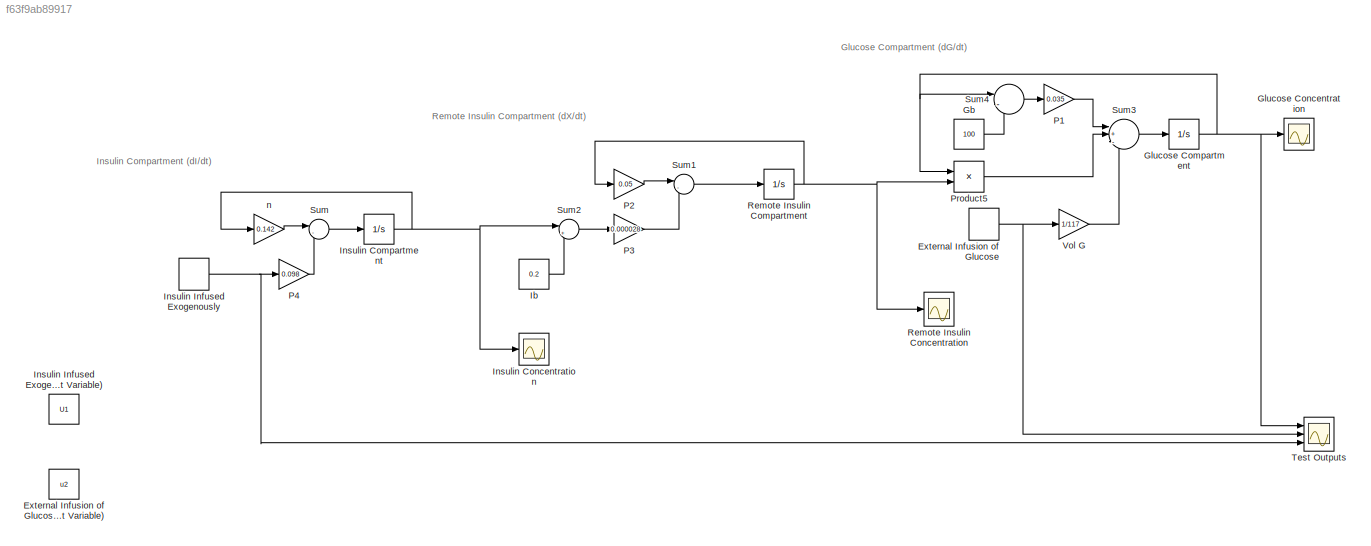
MODEL slx_f63f9ab89917
KIND model
CONFIG AbsTol = auto
CONFIG EnableMultiTasking = off
CONFIG FixedStep = auto
CONFIG MaxStep = auto
CONFIG MinStep = auto
CONFIG RelTol = 1e-3
CONFIG SampleTimeConstraint = Unconstrained
CONFIG Solver = VariableStepAuto
CONFIG SolverName = VariableStepAuto
CONFIG StartTime = 0.0
CONFIG StopTime = 500
WORKSPACE source: MAT-file member
WORKSPACE U1 = 100
BLOCK [DiscretePulseGenerator] External Infusion of Glucose
  Amplitude = 2
  Period = 195
  PhaseDelay = 15
  Ports = [0, 1]
  PulseType = Time based
  PulseWidth = 15
BLOCK [Constant] External Infusion of Glucose (Constant Variable)
  Commented = on
  Value = u2
BLOCK [Constant] Gb
  Value = 100
BLOCK [Integrator] Glucose Compartment
  InitialCondition = 100
  Ports = [1, 1]
BLOCK [Scope] Glucose Concentration
  Floating = off
  NumInputPorts = 1
  Ports = [1]
  ScopeSpecificationString = Simulink.scopes.TimeScopeBlockCfg('CurrentConfiguration', extmgr.ConfigurationSet(extmgr.Configuration('Core','General UI',true),extmgr.Configuration('Core','Source UI',true),extmgr.Configuration('Sources','WiredSimulink',true,'DataLoggingVariableName','ScopeData1'),extmgr.Configuration('Visuals','Time Domain',true,'SerializedDisplays',{struct('MinYLimReal','85.00262','MaxYLimReal','101.81529','YL...<+1806ch>
BLOCK [Constant] Ib
  Value = 0.2
BLOCK [Integrator] Insulin Compartment
  Ports = [1, 1]
BLOCK [Scope] Insulin Concentration
  Floating = off
  NumInputPorts = 1
  Ports = [1]
  ScopeSpecificationString = Simulink.scopes.TimeScopeBlockCfg('CurrentConfiguration', extmgr.ConfigurationSet(extmgr.Configuration('Core','General UI',true),extmgr.Configuration('Core','Source UI',true),extmgr.Configuration('Sources','WiredSimulink',true,'DataLoggingVariableName','ScopeData2'),extmgr.Configuration('Visuals','Time Domain',true,'SerializedDisplays',{struct('MinYLimReal','-0.86268','MaxYLimReal','7.76408','YLab...<+1812ch>
BLOCK [DiscretePulseGenerator] Insulin Infused Exogenously
  Amplitude = 10
  Period = 195
  Ports = [0, 1]
  PulseType = Time based
  PulseWidth = 15
BLOCK [Constant] Insulin Infused Exogenously (Constant Variable)
  Commented = on
  OutMax = 1000
  OutMin = 0
  Value = U1
BLOCK [Gain] P1
  Gain = 0.035
  OutDataTypeStr = Inherit: Inherit via internal rule
  ParamDataTypeStr = Inherit: Inherit via internal rule
  SaturateOnIntegerOverflow = off
BLOCK [Gain] P2
  Gain = 0.05
  OutDataTypeStr = Inherit: Inherit via internal rule
  ParamDataTypeStr = Inherit: Inherit via internal rule
  SaturateOnIntegerOverflow = off
BLOCK [Gain] P3
  Gain = 0.000028
  OutDataTypeStr = Inherit: Inherit via internal rule
  ParamDataTypeStr = Inherit: Inherit via internal rule
  SaturateOnIntegerOverflow = off
BLOCK [Gain] P4
  Gain = 0.098
  OutDataTypeStr = Inherit: Inherit via internal rule
  ParamDataTypeStr = Inherit: Inherit via internal rule
  SaturateOnIntegerOverflow = off
BLOCK [Product] Product5
  InputSameDT = off
  OutDataTypeStr = Inherit: Inherit via internal rule
  Ports = [2, 1]
  RndMeth = Floor
  SaturateOnIntegerOverflow = off
BLOCK [Integrator] Remote Insulin Compartment
  Ports = [1, 1]
BLOCK [Scope] Remote Insulin Concentration
  Floating = off
  NumInputPorts = 1
  Ports = [1]
  ScopeSpecificationString = Simulink.scopes.TimeScopeBlockCfg('CurrentConfiguration', extmgr.ConfigurationSet(extmgr.Configuration('Core','General UI',true),extmgr.Configuration('Core','Source UI',true),extmgr.Configuration('Sources','WiredSimulink',true,'DataLoggingVariableName','ScopeData3'),extmgr.Configuration('Visuals','Time Domain',true,'SerializedDisplays',{struct('MinYLimReal','-0.00482','MaxYLimReal','0.04335','YLab...<+1519ch>
BLOCK [Sum] Sum
  IconShape = round
  InputSameDT = off
  Inputs = |-+
  OutDataTypeStr = Inherit: Inherit via internal rule
  Ports = [2, 1]
  SaturateOnIntegerOverflow = off
BLOCK [Sum] Sum1
  IconShape = round
  InputSameDT = off
  Inputs = |-+
  OutDataTypeStr = Inherit: Inherit via internal rule
  Ports = [2, 1]
  SaturateOnIntegerOverflow = off
BLOCK [Sum] Sum2
  IconShape = round
  InputSameDT = off
  Inputs = |+-
  OutDataTypeStr = Inherit: Inherit via internal rule
  Ports = [2, 1]
  SaturateOnIntegerOverflow = off
BLOCK [Sum] Sum3
  IconShape = round
  InputSameDT = off
  Inputs = |+-+
  OutDataTypeStr = Inherit: Inherit via internal rule
  Ports = [3, 1]
  SaturateOnIntegerOverflow = off
BLOCK [Sum] Sum4
  IconShape = round
  InputSameDT = off
  Inputs = |-+
  OutDataTypeStr = Inherit: Inherit via internal rule
  Ports = [2, 1]
  SaturateOnIntegerOverflow = off
BLOCK [Scope] Test Outputs 
  Floating = off
  NumInputPorts = 3
  Ports = [3]
  ScopeSpecificationString = Simulink.scopes.TimeScopeBlockCfg('CurrentConfiguration', extmgr.ConfigurationSet(extmgr.Configuration('Core','General UI',true),extmgr.Configuration('Core','Source UI',true),extmgr.Configuration('Sources','WiredSimulink',true,'DataLoggingVariableName','ScopeData1'),extmgr.Configuration('Visuals','Time Domain',true,'SerializedDisplays',{struct('MinYLimReal','-12.5','MaxYLimReal','112.50001','YLabe...<+2037ch>
BLOCK [Gain] Vol G
  Gain = 1/117
  OutDataTypeStr = Inherit: Inherit via internal rule
  ParamDataTypeStr = Inherit: Inherit via internal rule
  SaturateOnIntegerOverflow = off
BLOCK [Gain] n
  Gain = 0.142
  OutDataTypeStr = Inherit: Inherit via internal rule
  ParamDataTypeStr = Inherit: Inherit via internal rule
  SaturateOnIntegerOverflow = off
ANNOTATION (root): Glucose Compartment (dG/dt)
ANNOTATION (root): Insulin Compartment (dI/dt)
ANNOTATION (root): Remote Insulin Compartment (dX/dt)
NET External Infusion of Glucose:1 -> Test Outputs :2, Vol G:1
LINE Gb:1 -> Sum4:2
NET Glucose Compartment:1 -> Glucose Concentration:1, Product5:1, Sum4:1, Test Outputs :1
LINE Ib:1 -> Sum2:2
NET Insulin Compartment:1 -> Insulin Concentration:1, Sum2:1, n:1
NET Insulin Infused Exogenously:1 -> P4:1, Test Outputs :3
LINE P1:1 -> Sum3:1
LINE P2:1 -> Sum1:1
LINE P3:1 -> Sum1:2
LINE P4:1 -> Sum:2
LINE Product5:1 -> Sum3:2
NET Remote Insulin Compartment:1 -> P2:1, Product5:2, Remote Insulin Concentration:1
LINE Sum1:1 -> Remote Insulin Compartment:1
LINE Sum2:1 -> P3:1
LINE Sum3:1 -> Glucose Compartment:1
LINE Sum4:1 -> P1:1
LINE Sum:1 -> Insulin Compartment:1
LINE Vol G:1 -> Sum3:3
LINE n:1 -> Sum:1
note: NET lines group one-source signal fan-out (src -> all destinations, sorted); 1:1 wires keep LINE
